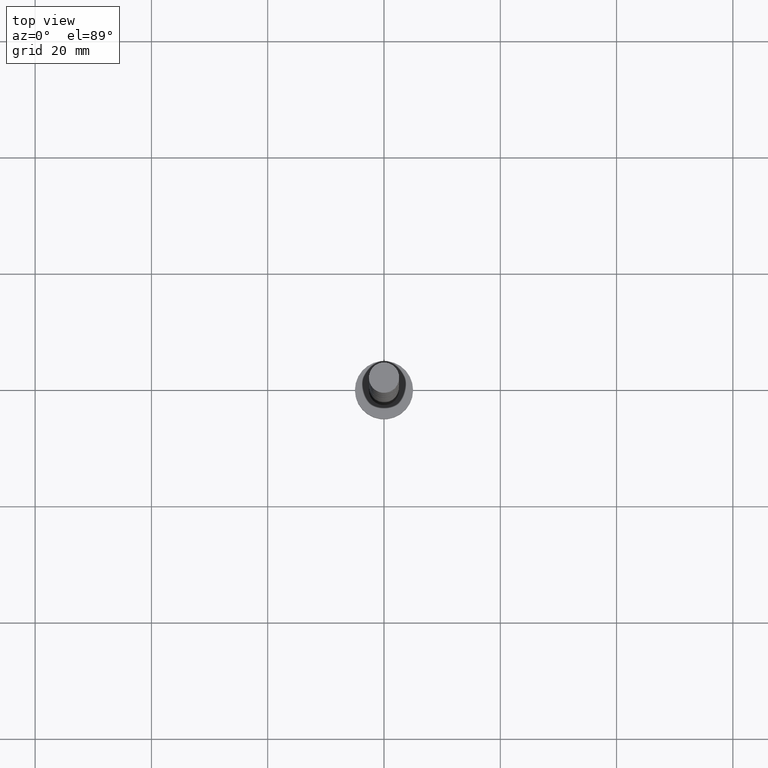
[diagram: clean part render]
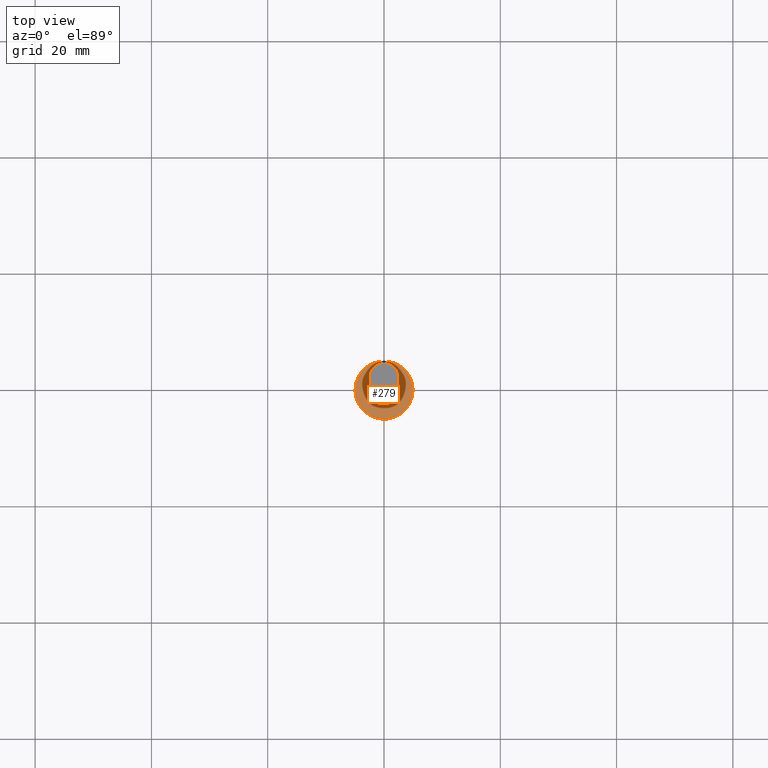
[diagram: same view with one face highlighted and labeled with its STEP entity id]
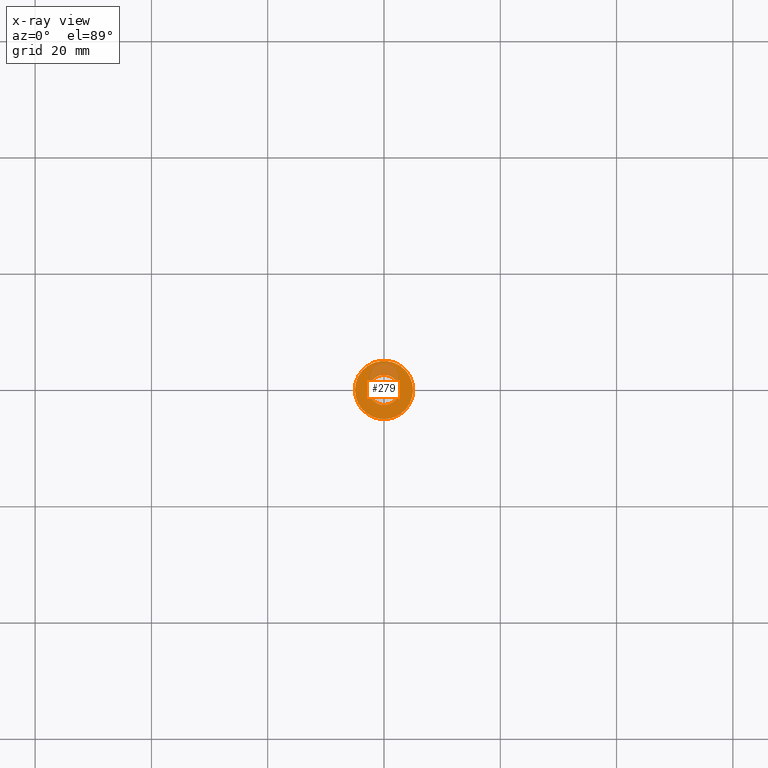
[diagram: x-ray of the same camera — body ghosted, the highlighted face saturated]
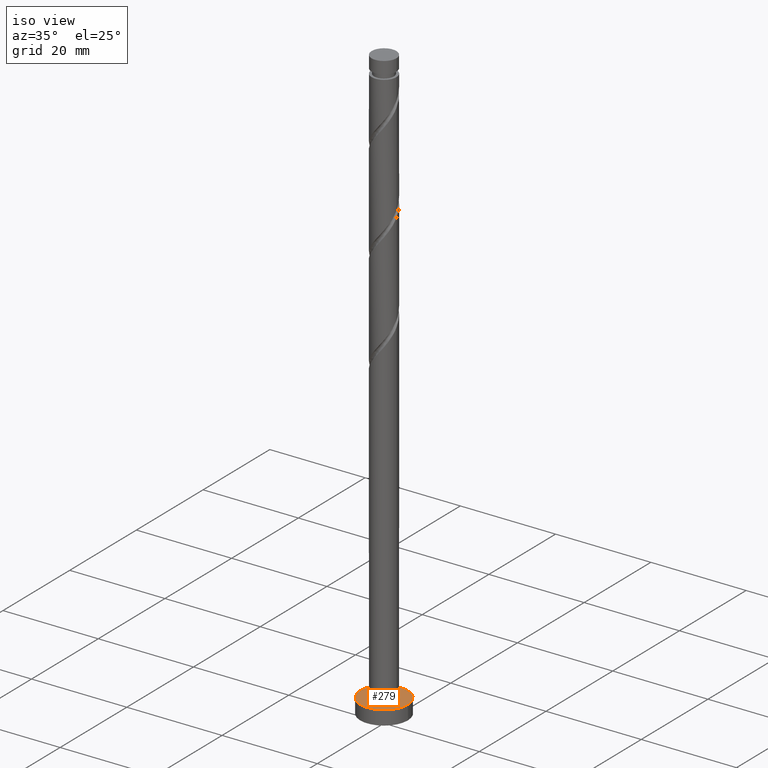
[diagram: same view with one face highlighted and labeled with its STEP entity id]
A machine part, top view. The second image highlights one B-rep face of the part: STEP entity #279.
The next image is the same camera in x-ray: the body ghosted, the highlighted face saturated — about 19% of this face is hidden behind the body in this view.
A second angle (iso view) of the same face is appended — the face is thin or edge-on in the first view.
In plain terms, the highlighted planar face has unit normal (0, 0, 1).
Its self-contained STEP definition (entity closure, byte-faithful):
#47 = EDGE_CURVE ( 'NONE', #884, #265, #915, .T. ) ;
#54 = DIRECTION ( 'NONE',  ( 0.000000000000000000, 0.000000000000000000, 1.000000000000000000 ) ) ;
#57 = DIRECTION ( 'NONE',  ( 1.000000000000000000, 0.000000000000000000, 0.000000000000000000 ) ) ;
#63 = CARTESIAN_POINT ( 'NONE',  ( 0.000000000000000000, 0.000000000000000000, 3.000000000000000000 ) ) ;
#94 = PLANE ( 'NONE',  #843 ) ;
#118 = VERTEX_POINT ( 'NONE', #440 ) ;
#181 = DIRECTION ( 'NONE',  ( 0.000000000000000000, 0.000000000000000000, 1.000000000000000000 ) ) ;
#228 = CARTESIAN_POINT ( 'NONE',  ( 2.600000000000000089, 3.184081677783117698E-16, 3.000000000000000000 ) ) ;
#265 = VERTEX_POINT ( 'NONE', #228 ) ;
#279 = ADVANCED_FACE ( 'NONE', ( #699, #1445 ), #94, .T. ) ;
#294 = DIRECTION ( 'NONE',  ( 0.000000000000000000, 0.000000000000000000, 1.000000000000000000 ) ) ;
#341 = AXIS2_PLACEMENT_3D ( 'NONE', #415, #294, #57 ) ;
#391 = CIRCLE ( 'NONE', #592, 2.600000000000000089 ) ;
#415 = CARTESIAN_POINT ( 'NONE',  ( 0.000000000000000000, 0.000000000000000000, 3.000000000000000000 ) ) ;
#422 = DIRECTION ( 'NONE',  ( 1.000000000000000000, 0.000000000000000000, 0.000000000000000000 ) ) ;
#440 = CARTESIAN_POINT ( 'NONE',  ( -5.000000000000000000, 0.000000000000000000, 3.000000000000000000 ) ) ;
#547 = ORIENTED_EDGE ( 'NONE', *, *, #47, .F. ) ;
#576 = DIRECTION ( 'NONE',  ( 1.000000000000000000, 0.000000000000000000, -0.000000000000000000 ) ) ;
#592 = AXIS2_PLACEMENT_3D ( 'NONE', #1160, #54, #1012 ) ;
#608 = EDGE_CURVE ( 'NONE', #902, #118, #1021, .T. ) ;
#641 = EDGE_CURVE ( 'NONE', #118, #902, #1565, .T. ) ;
#677 = EDGE_CURVE ( 'NONE', #265, #884, #391, .T. ) ;
#699 = FACE_BOUND ( 'NONE', #1208, .T. ) ;
#828 = CARTESIAN_POINT ( 'NONE',  ( 5.000000000000000000, 6.123233995736766282E-16, 3.000000000000000000 ) ) ;
#843 = AXIS2_PLACEMENT_3D ( 'NONE', #1183, #1327, #576 ) ;
#866 = AXIS2_PLACEMENT_3D ( 'NONE', #63, #181, #898 ) ;
#884 = VERTEX_POINT ( 'NONE', #941 ) ;
#898 = DIRECTION ( 'NONE',  ( 1.000000000000000000, 0.000000000000000000, 0.000000000000000000 ) ) ;
#902 = VERTEX_POINT ( 'NONE', #828 ) ;
#911 = ORIENTED_EDGE ( 'NONE', *, *, #608, .T. ) ;
#915 = CIRCLE ( 'NONE', #341, 2.600000000000000089 ) ;
#941 = CARTESIAN_POINT ( 'NONE',  ( -2.600000000000000089, 0.000000000000000000, 3.000000000000000000 ) ) ;
#963 = ORIENTED_EDGE ( 'NONE', *, *, #641, .T. ) ;
#985 = EDGE_LOOP ( 'NONE', ( #963, #911 ) ) ;
#1012 = DIRECTION ( 'NONE',  ( 1.000000000000000000, 0.000000000000000000, 0.000000000000000000 ) ) ;
#1021 = CIRCLE ( 'NONE', #1437, 5.000000000000000000 ) ;
#1160 = CARTESIAN_POINT ( 'NONE',  ( 0.000000000000000000, 0.000000000000000000, 3.000000000000000000 ) ) ;
#1183 = CARTESIAN_POINT ( 'NONE',  ( 0.000000000000000000, 0.000000000000000000, 3.000000000000000000 ) ) ;
#1208 = EDGE_LOOP ( 'NONE', ( #547, #1447 ) ) ;
#1251 = CARTESIAN_POINT ( 'NONE',  ( 0.000000000000000000, 0.000000000000000000, 3.000000000000000000 ) ) ;
#1327 = DIRECTION ( 'NONE',  ( 0.000000000000000000, 0.000000000000000000, 1.000000000000000000 ) ) ;
#1437 = AXIS2_PLACEMENT_3D ( 'NONE', #1251, #1526, #422 ) ;
#1445 = FACE_OUTER_BOUND ( 'NONE', #985, .T. ) ;
#1447 = ORIENTED_EDGE ( 'NONE', *, *, #677, .F. ) ;
#1526 = DIRECTION ( 'NONE',  ( 0.000000000000000000, 0.000000000000000000, 1.000000000000000000 ) ) ;
#1565 = CIRCLE ( 'NONE', #866, 5.000000000000000000 ) ;